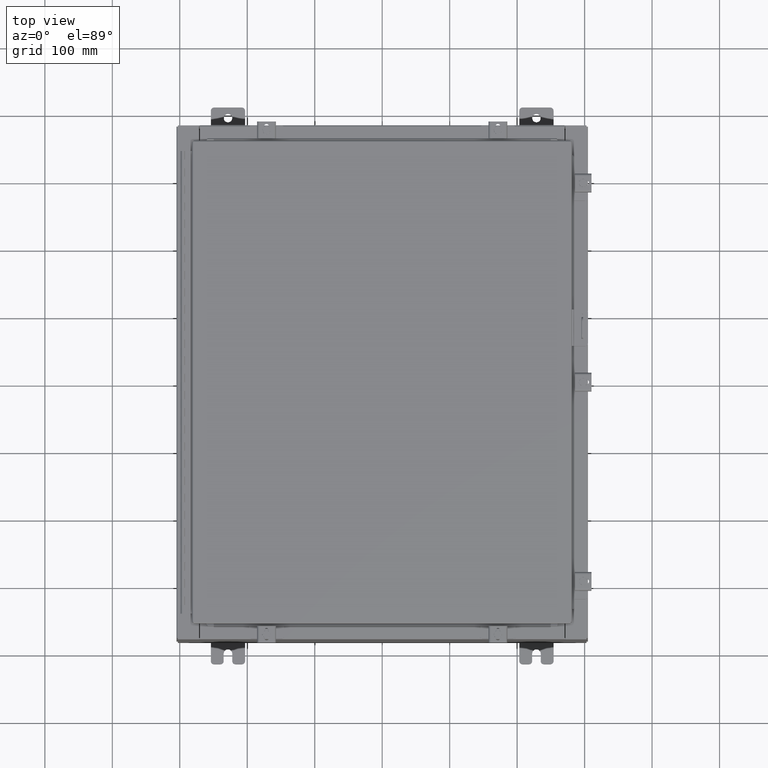
[diagram: clean part render]
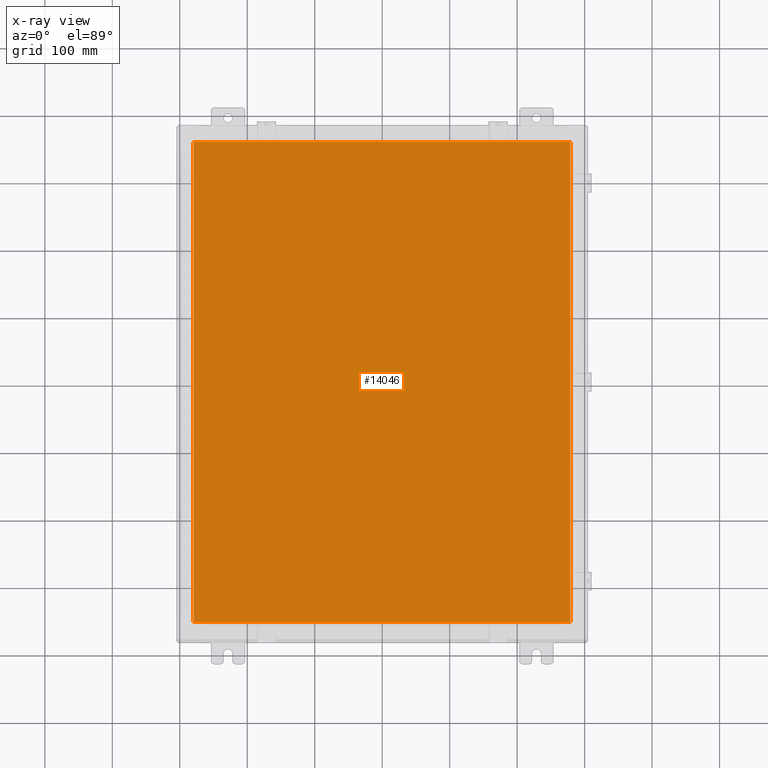
[diagram: x-ray — body ghosted, one internal face saturated and labeled with its STEP entity id]
A machine part, top view, then the same camera in x-ray: the body is ghosted and one INTERNAL B-rep face — a face not visible from any outside direction — is saturated and labeled: STEP entity #14046.
In plain terms, the highlighted planar face has unit normal (0, 0, -1).
Its self-contained STEP definition (entity closure, byte-faithful):
#420 = DIRECTION ( 'NONE',  ( -1.000000000000000000, 0.0000000000000000000, -0.0000000000000000000 ) ) ;
#555 = DIRECTION ( 'NONE',  ( 0.0000000000000000000, 0.0000000000000000000, -1.000000000000000000 ) ) ;
#690 = CARTESIAN_POINT ( 'NONE',  ( 0.0000000000000000000, 0.0000000000000000000, -0.07470000000000000300 ) ) ;
#1694 = PLANE ( 'NONE',  #26742 ) ;
#2178 = DIRECTION ( 'NONE',  ( 1.000000000000000000, -0.0000000000000000000, -0.0000000000000000000 ) ) ;
#2648 = CARTESIAN_POINT ( 'NONE',  ( -10.99030000000000000, 14.00630000000000100, -0.07470000000000019700 ) ) ;
#3848 = VERTEX_POINT ( 'NONE', #23479 ) ;
#3876 = EDGE_LOOP ( 'NONE', ( #30034, #15211, #12270, #15818 ) ) ;
#4023 = VECTOR ( 'NONE', #15596, 39.37007874015748100 ) ;
#4283 = LINE ( 'NONE', #7953, #34035 ) ;
#6577 = VERTEX_POINT ( 'NONE', #25060 ) ;
#7953 = CARTESIAN_POINT ( 'NONE',  ( -10.99029999999999600, -14.00629999999999800, -0.07470000000000019700 ) ) ;
#10342 = EDGE_CURVE ( 'NONE', #6577, #18333, #34675, .T. ) ;
#12270 = ORIENTED_EDGE ( 'NONE', *, *, #22595, .F. ) ;
#13204 = DIRECTION ( 'NONE',  ( 0.0000000000000000000, 1.000000000000000000, 0.0000000000000000000 ) ) ;
#13850 = VECTOR ( 'NONE', #25753, 39.37007874015748100 ) ;
#14046 = ADVANCED_FACE ( 'NONE', ( #36184 ), #1694, .T. ) ;
#14204 = CARTESIAN_POINT ( 'NONE',  ( 10.99030000000000000, -14.00629999999999800, -0.07470000000000000300 ) ) ;
#15211 = ORIENTED_EDGE ( 'NONE', *, *, #36543, .F. ) ;
#15596 = DIRECTION ( 'NONE',  ( -1.000000000000000000, -0.0000000000000000000, -0.0000000000000000000 ) ) ;
#15678 = CARTESIAN_POINT ( 'NONE',  ( 10.99030000000000000, 14.00629999999999800, -0.07470000000000019700 ) ) ;
#15818 = ORIENTED_EDGE ( 'NONE', *, *, #10342, .F. ) ;
#16122 = CARTESIAN_POINT ( 'NONE',  ( 10.99030000000000000, -14.00629999999999800, -0.07470000000000019700 ) ) ;
#18333 = VERTEX_POINT ( 'NONE', #20313 ) ;
#20313 = CARTESIAN_POINT ( 'NONE',  ( -10.99030000000000000, 14.00629999999999800, -0.07470000000000000300 ) ) ;
#22379 = LINE ( 'NONE', #2648, #13850 ) ;
#22556 = VECTOR ( 'NONE', #13204, 39.37007874015748100 ) ;
#22595 = EDGE_CURVE ( 'NONE', #18333, #3848, #22379, .T. ) ;
#22918 = EDGE_CURVE ( 'NONE', #26227, #6577, #28349, .T. ) ;
#23479 = CARTESIAN_POINT ( 'NONE',  ( -10.99030000000000000, -14.00629999999999600, -0.07470000000000000300 ) ) ;
#25060 = CARTESIAN_POINT ( 'NONE',  ( 10.99030000000000000, 14.00629999999999800, -0.07470000000000000300 ) ) ;
#25753 = DIRECTION ( 'NONE',  ( 0.0000000000000000000, -1.000000000000000000, 0.0000000000000000000 ) ) ;
#26227 = VERTEX_POINT ( 'NONE', #14204 ) ;
#26742 = AXIS2_PLACEMENT_3D ( 'NONE', #690, #555, #420 ) ;
#28349 = LINE ( 'NONE', #16122, #22556 ) ;
#30034 = ORIENTED_EDGE ( 'NONE', *, *, #22918, .F. ) ;
#34035 = VECTOR ( 'NONE', #2178, 39.37007874015748100 ) ;
#34675 = LINE ( 'NONE', #15678, #4023 ) ;
#36184 = FACE_OUTER_BOUND ( 'NONE', #3876, .T. ) ;
#36543 = EDGE_CURVE ( 'NONE', #3848, #26227, #4283, .T. ) ;